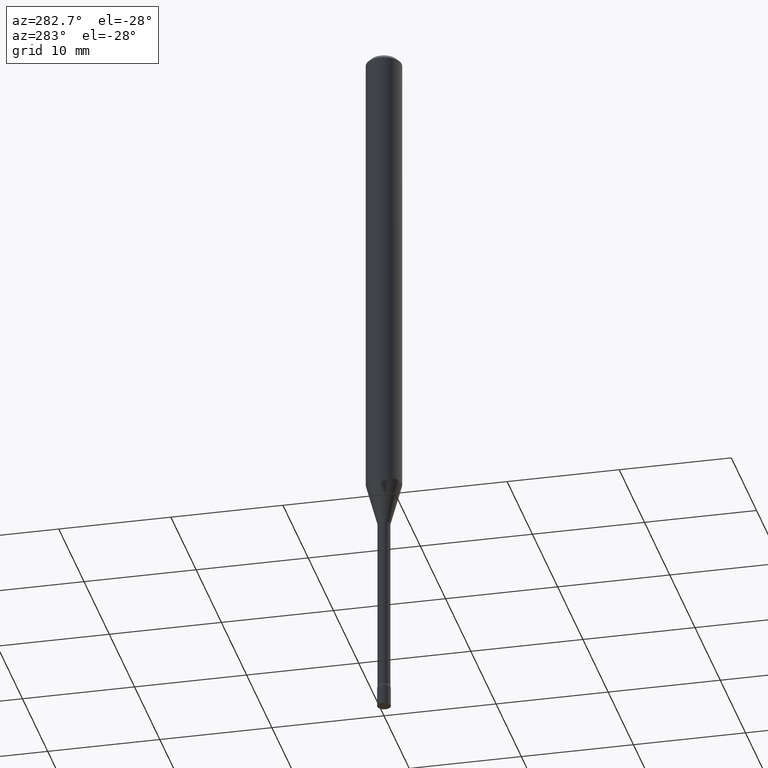
[diagram: clean part render]
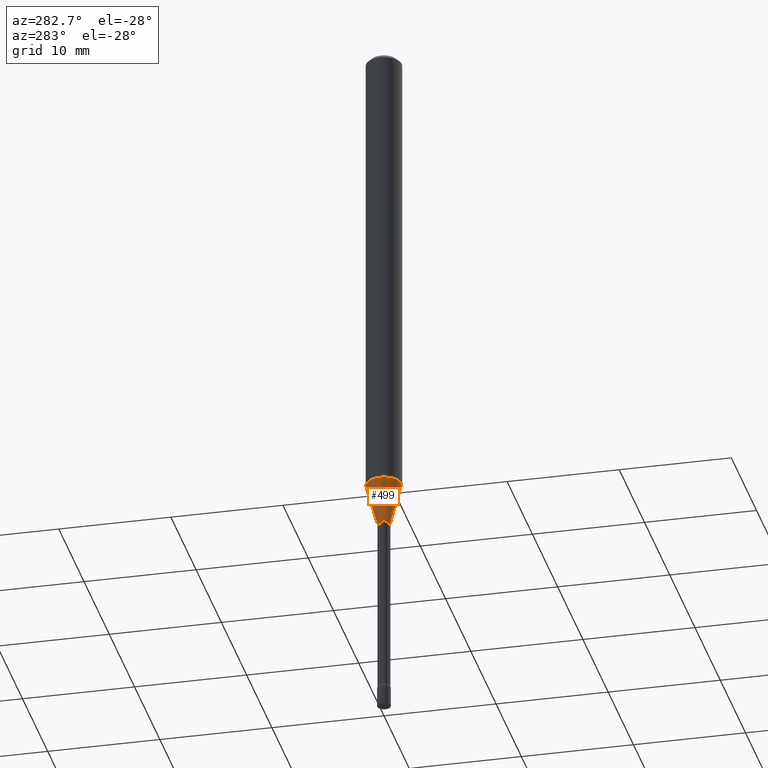
[diagram: same view with one face highlighted and labeled with its STEP entity id]
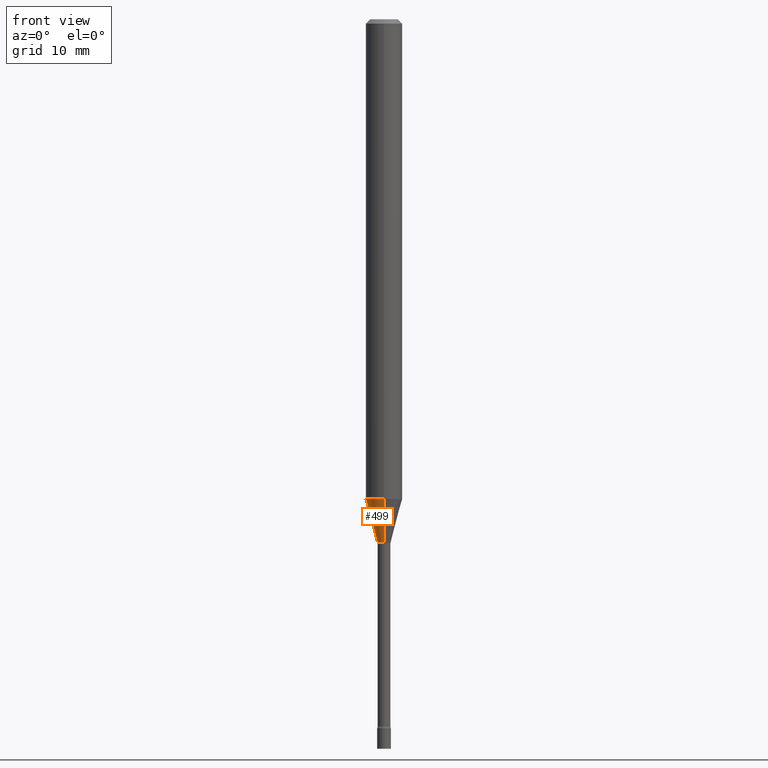
[diagram: same view with one face highlighted and labeled with its STEP entity id]
A machine part, auxiliary view. The second image highlights one B-rep face of the part: STEP entity #499.
A second angle (front view) of the same face is appended — the face is thin or edge-on in the first view.
In plain terms, the highlighted conical surface has half-angle 15 deg.
Its self-contained STEP definition (entity closure, byte-faithful):
#1 = LINE ( 'NONE', #147, #111 ) ;
#7 = CARTESIAN_POINT ( 'NONE',  ( 4.384932830333767000E-29, -6.260576145416959100E-15, -1.793092501787273196 ) ) ;
#27 = ORIENTED_EDGE ( 'NONE', *, *, #339, .F. ) ;
#32 = EDGE_CURVE ( 'NONE', #443, #470, #74, .T. ) ;
#51 = CARTESIAN_POINT ( 'NONE',  ( 4.384932830333767000E-29, -6.260576145416959100E-15, -1.793092501787273196 ) ) ;
#74 = CIRCLE ( 'NONE', #501, 0.02261111260566398690 ) ;
#111 = VECTOR ( 'NONE', #272, 39.37007874015747433 ) ;
#133 = CARTESIAN_POINT ( 'NONE',  ( -1.578925554262692203E-16, -0.02261111260567024925, -1.793092501787273196 ) ) ;
#147 = CARTESIAN_POINT ( 'NONE',  ( 1.606616180941255974E-16, 0.02261111260565772454, -1.793092501787273196 ) ) ;
#155 = DIRECTION ( 'NONE',  ( -6.982962677686265922E-15, -1.000000000000000000, 0.000000000000000000 ) ) ;
#159 = EDGE_LOOP ( 'NONE', ( #27, #242, #508, #316 ) ) ;
#175 = EDGE_CURVE ( 'NONE', #403, #288, #483, .T. ) ;
#212 = DIRECTION ( 'NONE',  ( -2.445458238190760089E-29, 3.491496472812585621E-15, 1.000000000000000000 ) ) ;
#214 = LINE ( 'NONE', #133, #396 ) ;
#242 = ORIENTED_EDGE ( 'NONE', *, *, #32, .T. ) ;
#251 = AXIS2_PLACEMENT_3D ( 'NONE', #413, #383, #307 ) ;
#258 = CARTESIAN_POINT ( 'NONE',  ( -1.578925554262692203E-16, -0.02261111260567024925, -1.793092501787273196 ) ) ;
#272 = DIRECTION ( 'NONE',  ( 1.839019923739599526E-15, 0.2588190451025248473, 0.9659258262890673130 ) ) ;
#281 = DIRECTION ( 'NONE',  ( -2.445458238190760089E-29, 3.491496472812585621E-15, 1.000000000000000000 ) ) ;
#288 = VERTEX_POINT ( 'NONE', #420 ) ;
#306 = FACE_OUTER_BOUND ( 'NONE', #159, .T. ) ;
#307 = DIRECTION ( 'NONE',  ( -6.982962677686265922E-15, -1.000000000000000000, 4.370956789862821150E-15 ) ) ;
#316 = ORIENTED_EDGE ( 'NONE', *, *, #175, .F. ) ;
#325 = CARTESIAN_POINT ( 'NONE',  ( 4.440892098501025523E-16, 0.06249999999999423378, -1.644225147374218210 ) ) ;
#339 = EDGE_CURVE ( 'NONE', #443, #403, #1, .T. ) ;
#367 = EDGE_CURVE ( 'NONE', #470, #288, #214, .T. ) ;
#373 = DIRECTION ( 'NONE',  ( -6.982962677686265922E-15, -1.000000000000000000, 0.000000000000000000 ) ) ;
#374 = DIRECTION ( 'NONE',  ( -1.807323732225328562E-15, -0.2588190451025179639, 0.9659258262890689783 ) ) ;
#383 = DIRECTION ( 'NONE',  ( -2.445458238190760089E-29, 3.491496472812585621E-15, 1.000000000000000000 ) ) ;
#387 = AXIS2_PLACEMENT_3D ( 'NONE', #51, #212, #373 ) ;
#396 = VECTOR ( 'NONE', #374, 39.37007874015749564 ) ;
#403 = VERTEX_POINT ( 'NONE', #325 ) ;
#413 = CARTESIAN_POINT ( 'NONE',  ( 4.020883932086697995E-29, -5.740806302566835225E-15, -1.644225147374217988 ) ) ;
#420 = CARTESIAN_POINT ( 'NONE',  ( -4.364351673553515854E-16, -0.06250000000000575928, -1.644225147374217544 ) ) ;
#443 = VERTEX_POINT ( 'NONE', #459 ) ;
#459 = CARTESIAN_POINT ( 'NONE',  ( 3.023754139721142721E-16, 0.02261111260565773148, -1.793092501787273196 ) ) ;
#470 = VERTEX_POINT ( 'NONE', #258 ) ;
#483 = CIRCLE ( 'NONE', #251, 0.06250000000000000000 ) ;
#499 = ADVANCED_FACE ( 'NONE', ( #306 ), #520, .T. ) ;
#501 = AXIS2_PLACEMENT_3D ( 'NONE', #7, #281, #155 ) ;
#508 = ORIENTED_EDGE ( 'NONE', *, *, #367, .T. ) ;
#520 = CONICAL_SURFACE ( 'NONE', #387, 0.02261111260566398690, 0.2617993877991501295 ) ;